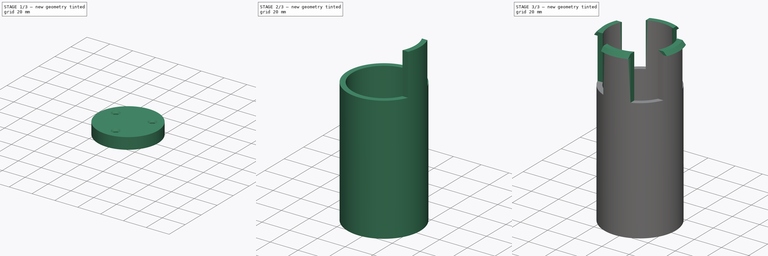
[diagram: build sequence overview — one tinted view per stage of 3, left to right]
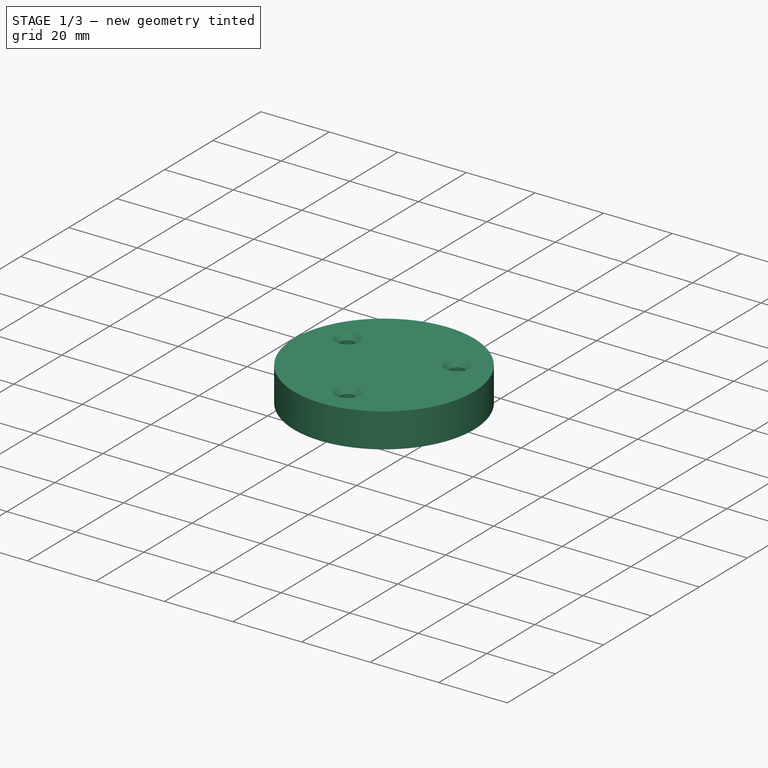
[diagram: stage 1 of 3 — iso view after this stage's code; geometry added in this stage tinted green]
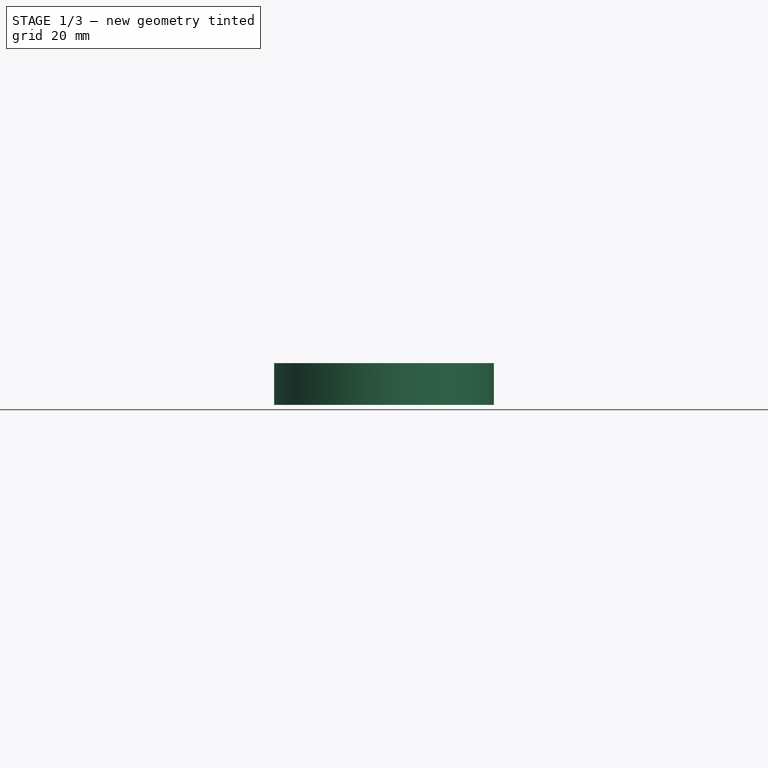
[diagram: stage 1 of 3 — front view after this stage's code; geometry added in this stage tinted green]
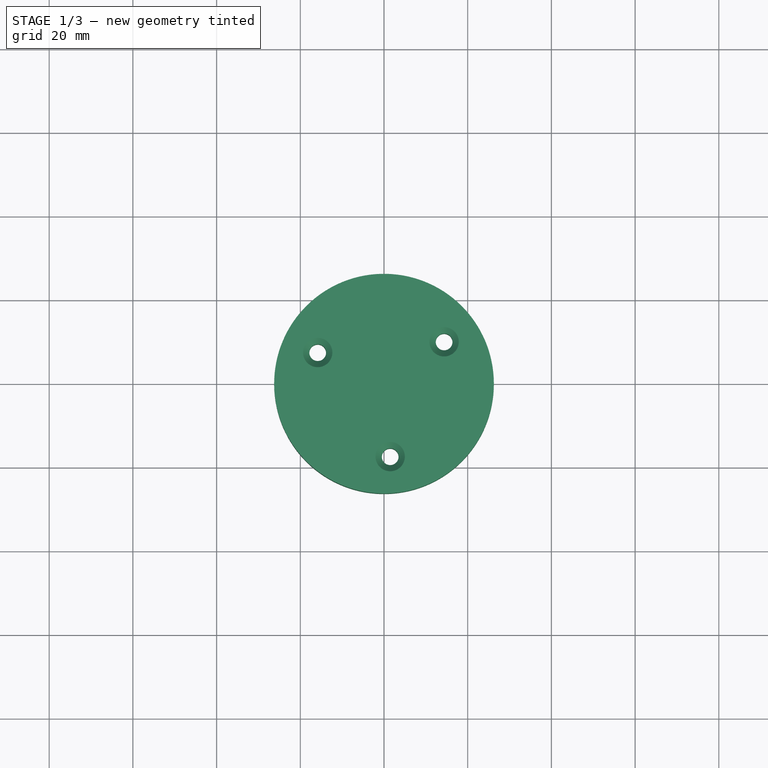
[diagram: stage 1 of 3 — top view after this stage's code; geometry added in this stage tinted green]
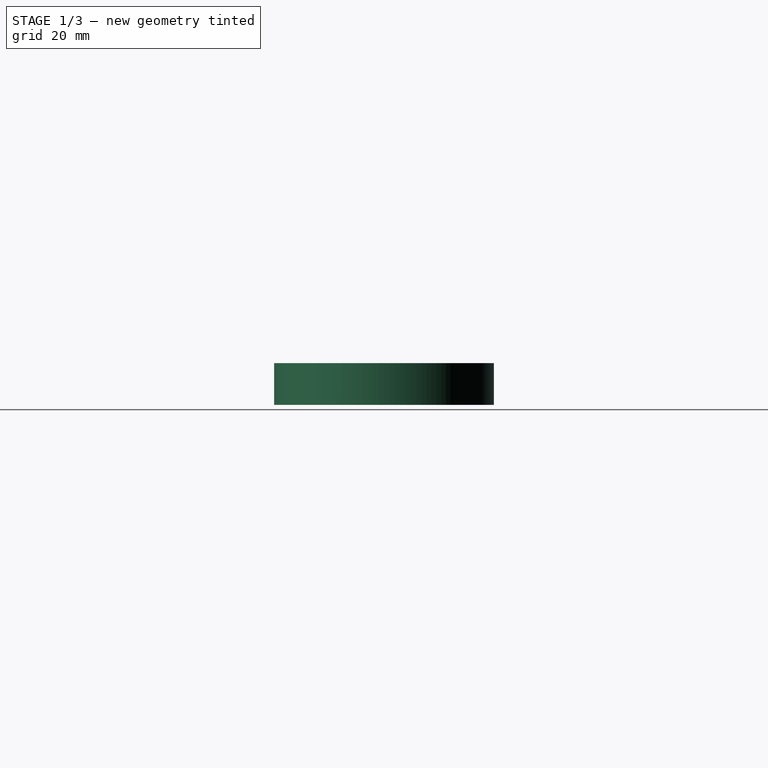
[diagram: stage 1 of 3 — right view after this stage's code; geometry added in this stage tinted green]
FCSTD DOCUMENT  (FreeCAD 2021.717R24301 +3627 (Git))
Label: wall spool holder
License: All rights reserved
LicenseURL: http://en.wikipedia.org/wiki/All_rights_reserved
objects: Sketcher::SketchObject×6, PartDesign::Pad×3, PartDesign::PolarPattern×2, Spreadsheet::Sheet×1, PartDesign::Hole×1, PartDesign::AdditivePipe×1, PartDesign::Pocket×1, PartDesign::Body×1
note: 31 computed .brp shape members not serialized (recipe doc carries the construction recipe); baked Part::Feature solids carry a one-line shape summary decoded from their .brp

FEATURE [Sketcher::SketchObject] Sketch
  FullyConstrained = true
  MapMode = 5
  Support = -> [XY_Plane]
  expr: Constraints[1] = <<dim>>.spool_inner_d
  sketch-geometry (1):
    g0: Circle CenterX=0 CenterY=0 CenterZ=0 NormalX=0 NormalY=0 NormalZ=1 AngleXU=0 Radius=26.25
  constraints (2):
    c: Coincident(g0,g-1)
    c: Diameter(g0) = 52.5
FEATURE [Spreadsheet::Sheet] Spreadsheet  label="dim"
  PythonMode = false
  cells = A1=spool_inner_d; B1(spool_inner_d)==52.5mm; A2=spool_thickness; B2(spool_thickness)==120mm; A3=wall_mount_thickness; B3(wall_mount_thickness)==10mm; A4=wall_hole_d; B4(wall_hole_d)==4mm; A5=wall_hole_countersink_d; B5(wall_hole_countersink_d)==7mm; A6=wall_hole_count; B6(wall_hole_count)=3; A7=cylinder_support_height; B7(cylinder_support_height)==80mm; A8=lock_width; B8(lock_width)==20mm; A9=lock_thickness; B9(lock_thickness)==3.58mm; A10=lock_lock; B10(lock_lock)==2.5mm; A11=lock_count; B11(lock_count)=4; A13=lock_height; B13(lock_height)==spool_thickness - wall_mount_thickness - cylinder_support_height
FEATURE [PartDesign::Pad] Pad
  ClaimChildren = false
  Direction = (1,1,1)
  Fit = 0
  FitJoin = 0
  InnerFit = 0
  InnerFitJoin = 0
  InnerTaperAngle = 0
  InnerTaperAngleRev = 0
  Length = 10
  Length2 = 100
  Linearize = true
  NewSolid = false
  Profile = -> Sketch
  Refine = true
  Suppress = false
  Type = 0
  _ProfileBasedVersion = 1
  expr: Length = <<dim>>.wall_mount_thickness
FEATURE [Sketcher::SketchObject] Sketch001
  AttachmentOffset = pos=(0,0,10) rot=(0,0,1;0rad)
  FullyConstrained = true
  MapMode = 5
  Placement = pos=(0,0,10) rot=(0,0,1;0rad)
  Support = -> [XY_Plane]
  expr: AttachmentOffset.Base.z = <<dim>>.wall_mount_thickness
  expr: Constraints[0] = <<dim>>.wall_hole_d
  expr: Constraints[1] = <<dim>>.spool_inner_d * 2 / 6
  expr: Constraints[2] = <<dim>>.lock_width / 2
  sketch-geometry (1):
    g0: Circle CenterX=14.3614 CenterY=10 CenterZ=0 NormalX=0 NormalY=0 NormalZ=1 AngleXU=0 Radius=2
  constraints (3):
    c: Diameter(g0) = 4
    c: Distance(g-1,g0) = 17.5
    c: DistanceY(g-1,g0) = 10
FEATURE [PartDesign::Hole] Hole
  BaseFeature = -> Pad
  ClaimChildren = false
  CustomThreadClearance = 0
  Depth = 25
  DepthType = 1
  Diameter = 4
  DrillForDepth = false
  DrillPoint = 1
  DrillPointAngle = 118
  Fit = 0
  FitJoin = 0
  HoleCutCountersinkAngle = 90
  HoleCutCustomValues = false
  HoleCutDepth = 0
  HoleCutDiameter = 7
  HoleCutType = 2
  InnerFit = 0
  InnerFitJoin = 0
  ModelThread = false
  NewSolid = false
  Profile = -> Sketch001
  Refine = true
  Suppress = false
  Tapered = false
  TaperedAngle = 45
  ThreadClass = 0
  ThreadDepth = 200.99
  ThreadDepthType = 0
  ThreadDirection = 0
  ThreadFit = 0
  ThreadSize = 0
  ThreadType = 0
  Threaded = false
  UseCustomThreadClearance = false
  _ProfileBasedVersion = 1
  expr: Diameter = <<dim>>.wall_hole_d
  expr: HoleCutDiameter = <<dim>>.wall_hole_countersink_d
FEATURE [PartDesign::PolarPattern] PolarPattern
  Angle = 360
  Axis = -> Sketch001 [N_Axis]
  BaseFeature = -> Hole
  CopyShape = false
  NewSolid = false
  Occurrences = 3
  OriginalSubs = -> [Hole]
  Originals = -> [Hole]
  ParallelTransform = true
  Refine = true
  SubTransform = true
  Suppress = false
  expr: Occurrences = <<dim>>.wall_hole_count
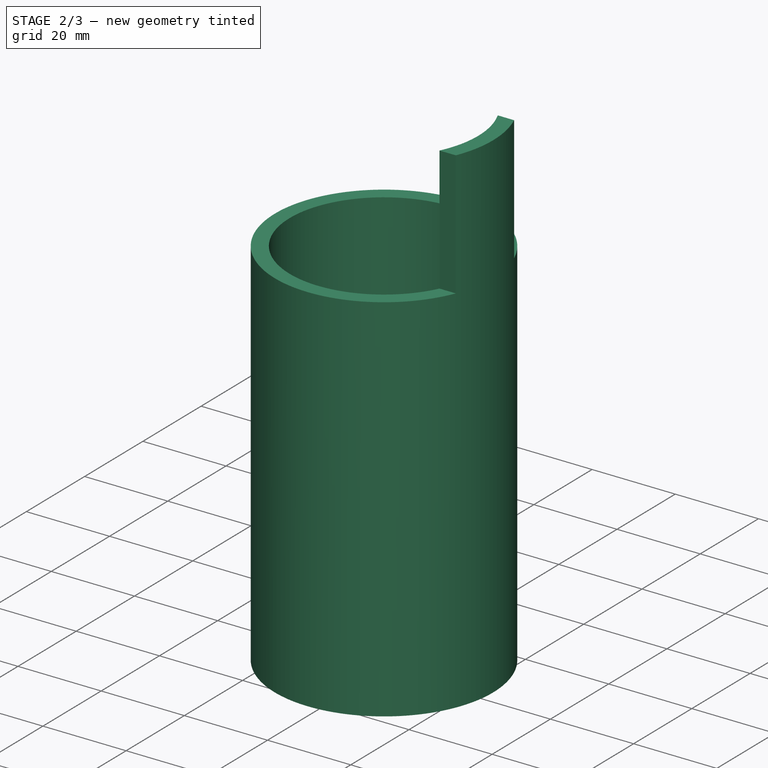
[diagram: stage 2 of 3 — iso view after this stage's code; geometry added in this stage tinted green]
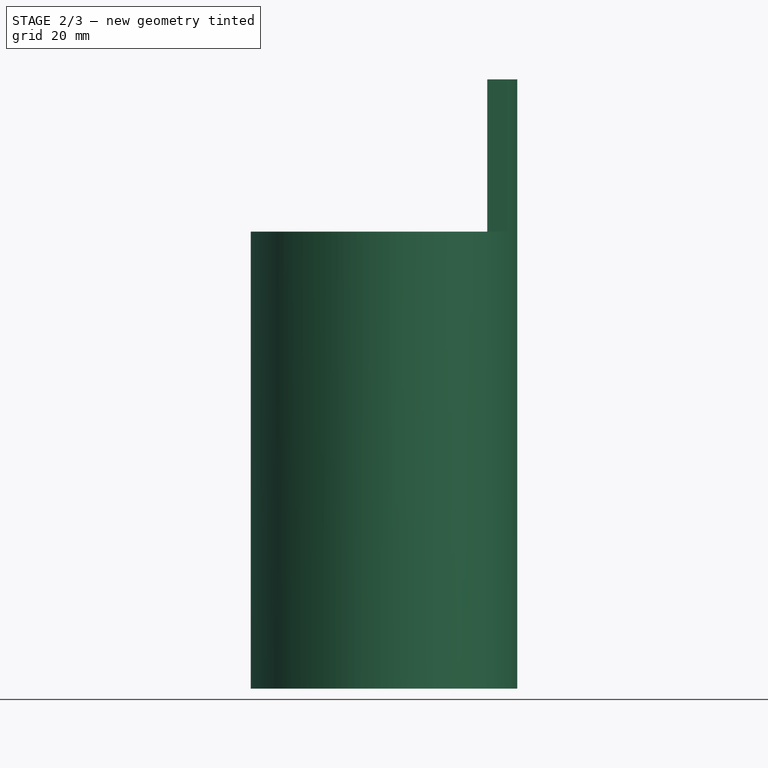
[diagram: stage 2 of 3 — front view after this stage's code; geometry added in this stage tinted green]
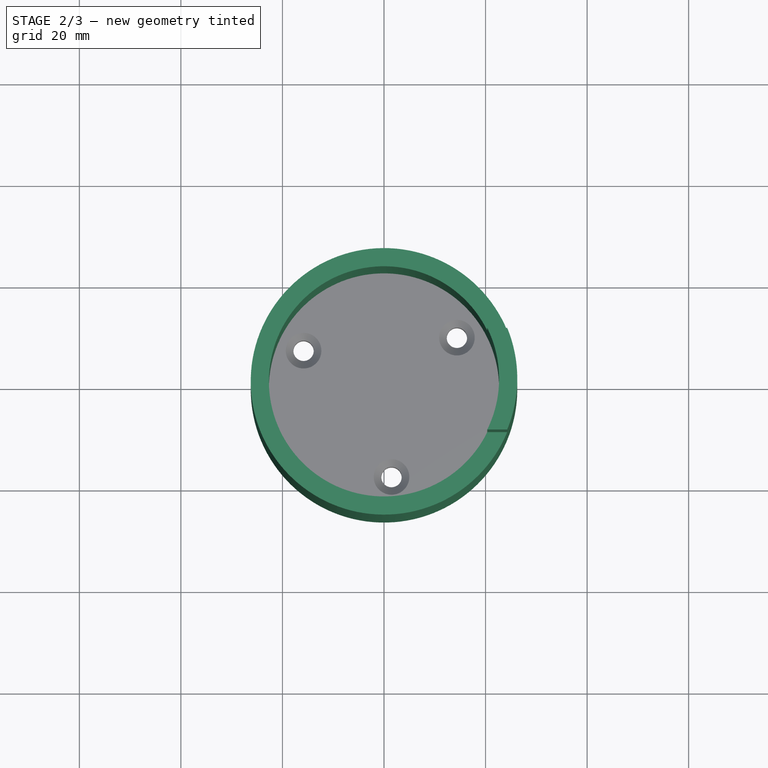
[diagram: stage 2 of 3 — top view after this stage's code; geometry added in this stage tinted green]
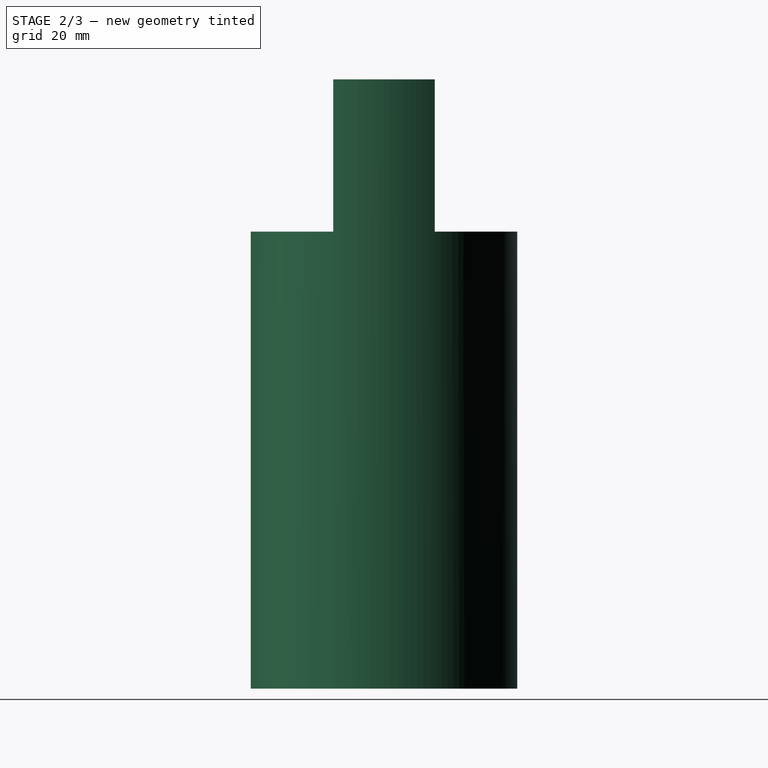
[diagram: stage 2 of 3 — right view after this stage's code; geometry added in this stage tinted green]
FEATURE [Sketcher::SketchObject] Sketch002
  AttachmentOffset = pos=(0,0,90) rot=(0,0,1;0rad)
  FullyConstrained = true
  MapMode = 5
  Placement = pos=(0,0,90) rot=(0,0,1;0rad)
  Support = -> [XY_Plane]
  expr: AttachmentOffset.Base.z = <<dim>>.wall_mount_thickness + <<dim>>.cylinder_support_height
  expr: Constraints[11] = <<dim>>.lock_thickness
  expr: Constraints[6] = <<dim>>.spool_inner_d
  expr: Constraints[7] = <<dim>>.lock_width
  sketch-geometry (6):
    g0: ArcOfCircle CenterX=0 CenterY=0 CenterZ=0 NormalX=0 NormalY=0 NormalZ=1 AngleXU=0 Radius=26.25 StartAngle=5.89236 EndAngle=6.67401
    g1: LineSegment StartX=20.3452 StartY=10 StartZ=0 EndX=24.2706 EndY=10 EndZ=0
    g2: LineSegment StartX=20.3452 StartY=-10 StartZ=0 EndX=24.2706 EndY=-10 EndZ=0
    g3: GeomPoint [constr] X=22.67 Y=0 Z=0
    g4: GeomPoint [constr] X=26.25 Y=0 Z=0
    g5: ArcOfCircle CenterX=0 CenterY=0 CenterZ=0 NormalX=0 NormalY=0 NormalZ=1 AngleXU=0 Radius=22.67 StartAngle=5.82635 EndAngle=6.74002
  constraints (16):
    c: Coincident(g0,g-1)
    c: Coincident(g1,g0)
    c: Coincident(g2,g0)
    c: Horizontal(g1)
    c: Horizontal(g2)
    c: Symmetric(g0,g0,g-1)
    c: Diameter(g0) = 52.5
    c: DistanceY(g2,g1) = 20
    c: PointOnObject(g3,g-1)
    c: PointOnObject(g4,g0)
    c: PointOnObject(g4,g-1)
    c: DistanceX(g3,g4) = 3.58
    c: Coincident(g5,g0)
    c: PointOnObject(g3,g5)
    c: Coincident(g1,g5)
    c: Coincident(g2,g5)
FEATURE [Sketcher::SketchObject] Sketch005
  AttachmentOffset = pos=(0,0,10) rot=(0,0,1;0rad)
  FullyConstrained = true
  MapMode = 5
  Placement = pos=(0,0,10) rot=(0,0,1;0rad)
  Support = -> [XY_Plane]
  expr: AttachmentOffset.Base.z = <<dim>>.wall_mount_thickness
  expr: Constraints[2] = <<dim>>.spool_inner_d
  expr: Constraints[3] = <<dim>>.spool_inner_d - <<dim>>.lock_thickness * 2
  sketch-geometry (2):
    g0: Circle CenterX=0 CenterY=0 CenterZ=0 NormalX=0 NormalY=0 NormalZ=1 AngleXU=0 Radius=26.25
    g1: Circle CenterX=0 CenterY=0 CenterZ=0 NormalX=0 NormalY=0 NormalZ=1 AngleXU=0 Radius=22.67
  constraints (4):
    c: Coincident(g0,g-1)
    c: Coincident(g1,g0)
    c: Diameter(g0) = 52.5
    c: Diameter(g1) = 45.34
FEATURE [PartDesign::Pad] Pad001
  BaseFeature = -> PolarPattern
  ClaimChildren = false
  Direction = (1,1,1)
  Fit = 0
  FitJoin = 0
  InnerFit = 0
  InnerFitJoin = 0
  InnerTaperAngle = 0
  InnerTaperAngleRev = 0
  Length = 80
  Length2 = 100
  Linearize = true
  NewSolid = false
  Profile = -> Sketch005
  Refine = true
  Suppress = false
  Type = 0
  _ProfileBasedVersion = 1
  expr: Length = <<dim>>.cylinder_support_height
FEATURE [PartDesign::Pad] Pad002
  BaseFeature = -> Pad001
  ClaimChildren = false
  Direction = (1,1,1)
  Fit = 0
  FitJoin = 0
  InnerFit = 0
  InnerFitJoin = 0
  InnerTaperAngle = 0
  InnerTaperAngleRev = 0
  Length = 30
  Length2 = 100
  Linearize = true
  NewSolid = false
  Profile = -> Sketch002
  Refine = true
  Suppress = false
  Type = 0
  _ProfileBasedVersion = 1
  expr: Length = <<dim>>.lock_height
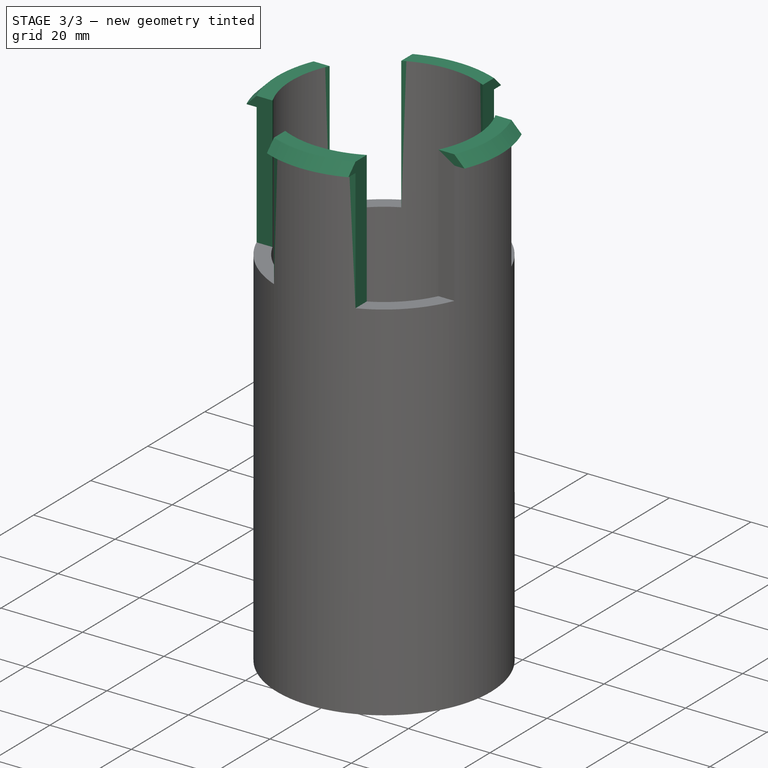
[diagram: stage 3 of 3 — iso view after this stage's code; geometry added in this stage tinted green]
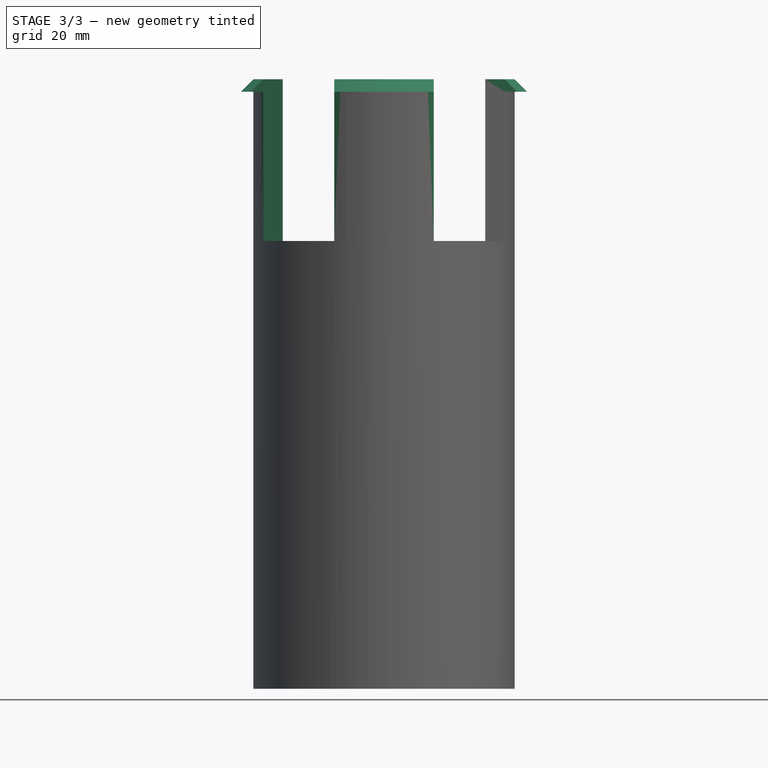
[diagram: stage 3 of 3 — front view after this stage's code; geometry added in this stage tinted green]
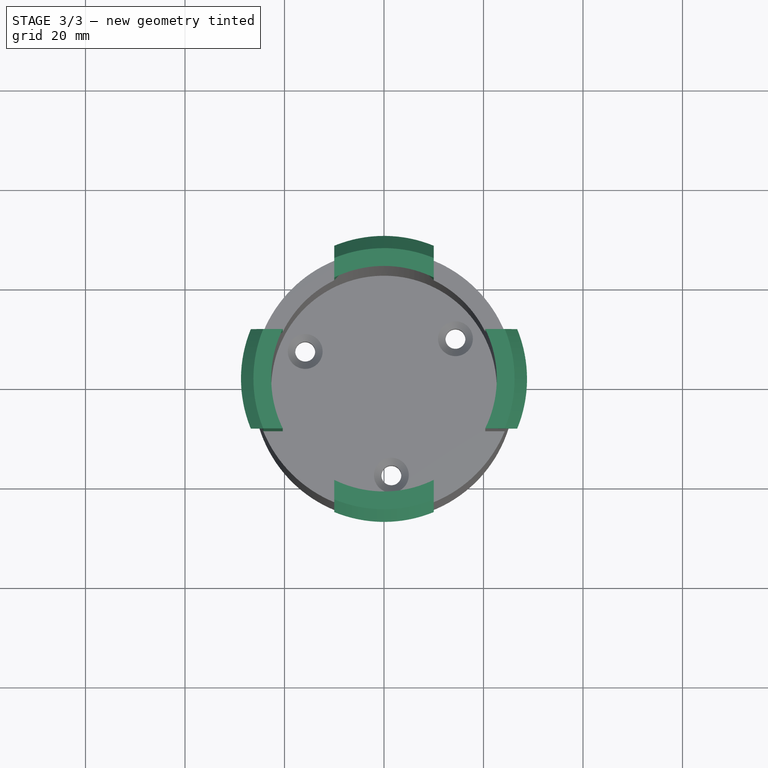
[diagram: stage 3 of 3 — top view after this stage's code; geometry added in this stage tinted green]
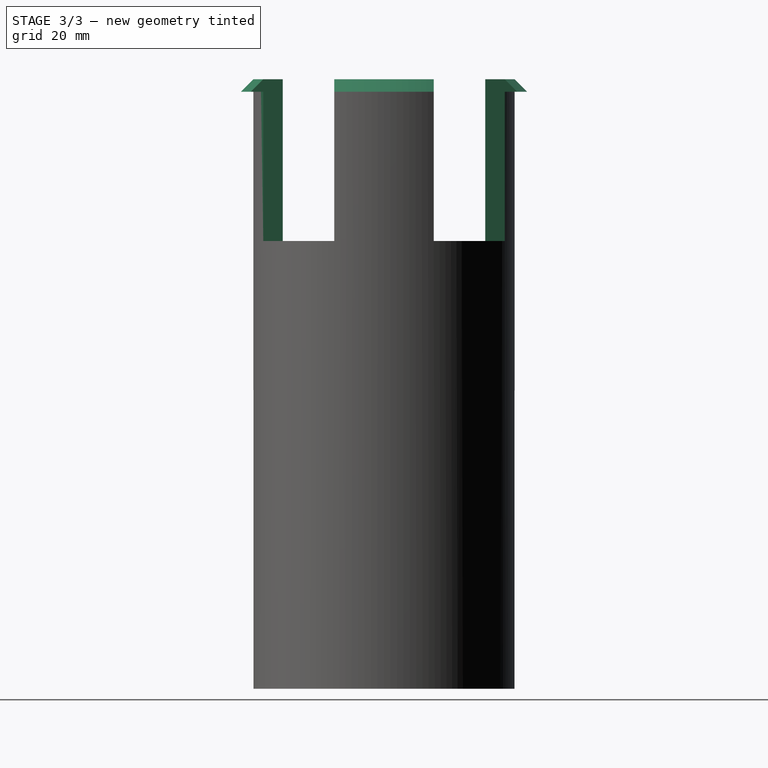
[diagram: stage 3 of 3 — right view after this stage's code; geometry added in this stage tinted green]
FEATURE [Sketcher::SketchObject] Sketch003
  ExternalGeometry = -> [Pad002]
  FullyConstrained = true
  MapMode = 5
  Placement = pos=(0,0,0) rot=(1,0,0;1.5708rad)
  Support = -> [XZ_Plane]
  expr: Constraints[9] = <<dim>>.lock_lock
  sketch-geometry (5):
    g0: LineSegment StartX=20.3452 StartY=122.5 StartZ=0 EndX=20.3452 EndY=120 EndZ=0
    g1: LineSegment StartX=20.3452 StartY=122.5 StartZ=0 EndX=26.25 EndY=122.5 EndZ=0
    g2: LineSegment StartX=26.25 StartY=122.5 StartZ=0 EndX=28.75 EndY=120 EndZ=0
    g3: LineSegment StartX=20.3452 StartY=120 StartZ=0 EndX=26.25 EndY=120 EndZ=0
    g4: LineSegment StartX=26.25 StartY=120 StartZ=0 EndX=28.75 EndY=120 EndZ=0
  constraints (13):
    c: Vertical(g0)
    c: Coincident(g2,g1)
    c: Coincident(g4,g3)
    c: Coincident(g4,g2)
    c: Horizontal(g4)
    c: Equal(g4,g0)
    c: Vertical(g1,g3)
    c: Horizontal(g1)
    c: Coincident(g3,g-4)
    c: DistanceX(g4,g4) = 2.5
    c: Coincident(g0,g3)
    c: Coincident(g0,g-3)
    c: Coincident(g0,g1)
FEATURE [PartDesign::AdditivePipe] AdditivePipe
  AuxilleryCurvelinear = true
  AuxillerySpineTangent = false
  BaseFeature = -> Pad002
  Binormal = (0,0,0)
  ClaimChildren = false
  Fit = 0
  FitJoin = 0
  InnerFit = 0
  InnerFitJoin = 0
  Mode = 1
  NewSolid = false
  Profile = -> Sketch003
  Refine = true
  Spine = -> Pad002 [Edge11,Edge12]
  SpineTangent = false
  Suppress = false
  Transformation = 0
  Transition = 1
  _ProfileBasedVersion = 1
FEATURE [Sketcher::SketchObject] Sketch006
  AttachmentOffset = pos=(0,0,120) rot=(0,0,1;0rad)
  ExternalGeometry = -> [AdditivePipe]
  FullyConstrained = true
  MapMode = 5
  Placement = pos=(0,0,120) rot=(0,0,1;0rad)
  Support = -> [XY_Plane]
  expr: AttachmentOffset.Base.z = <<dim>>.spool_thickness
  sketch-geometry (4):
    g0: ArcOfCircle CenterX=0 CenterY=0 CenterZ=0 NormalX=0 NormalY=0 NormalZ=1 AngleXU=0 Radius=22.67 StartAngle=5.82635 EndAngle=6.74002
    g1: LineSegment StartX=20.3452 StartY=-10 StartZ=0 EndX=0 EndY=-10 EndZ=0
    g2: LineSegment StartX=20.3452 StartY=10 StartZ=0 EndX=0 EndY=10 EndZ=0
    g3: LineSegment StartX=0 StartY=10 StartZ=0 EndX=0 EndY=-10 EndZ=0
  constraints (11):
    c: Coincident(g0,g-3)
    c: Coincident(g0,g-3)
    c: Coincident(g0,g-3)
    c: Coincident(g1,g0)
    c: PointOnObject(g1,g-2)
    c: Horizontal(g1)
    c: Coincident(g2,g0)
    c: PointOnObject(g2,g-2)
    c: Horizontal(g2)
    c: Coincident(g3,g2)
    c: Coincident(g3,g1)
FEATURE [PartDesign::Pocket] Pocket
  BaseFeature = -> AdditivePipe
  ClaimChildren = false
  Fit = 0
  FitJoin = 0
  InnerFit = 0
  InnerFitJoin = 0
  InnerTaperAngle = 0
  InnerTaperAngleRev = 0
  Length = 5
  Length2 = 100
  Linearize = true
  NewSolid = false
  Profile = -> Sketch006
  Refine = true
  Reversed = true
  Suppress = false
  Type = 1
  _ProfileBasedVersion = 1
FEATURE [PartDesign::PolarPattern] PolarPattern001
  Angle = 360
  Axis = -> Sketch002 [N_Axis]
  BaseFeature = -> Pocket
  CopyShape = false
  NewSolid = false
  Occurrences = 4
  OriginalSubs = -> [Pad002,AdditivePipe,Pocket]
  Originals = -> [Pad002,AdditivePipe,Pocket]
  ParallelTransform = true
  Refine = true
  SubTransform = true
  Suppress = false
  expr: Occurrences = <<dim>>.lock_count
FEATURE [PartDesign::Body] Body
  AutoGroupSolids = false
  ExportMode = 0
  Group = -> [Sketch,Pad,Sketch001,Hole,PolarPattern,Sketch002,Sketch003,Sketch005,Pad001,Pad002,AdditivePipe,Sketch006,Pocket,PolarPattern001]
  Origin = -> Origin
  Tip = -> PolarPattern001
  _ExportChildren = -> [Pad,Hole,PolarPattern,Pad001,Pad002,AdditivePipe,Pocket,PolarPattern001]
  _GroupVersion = 1
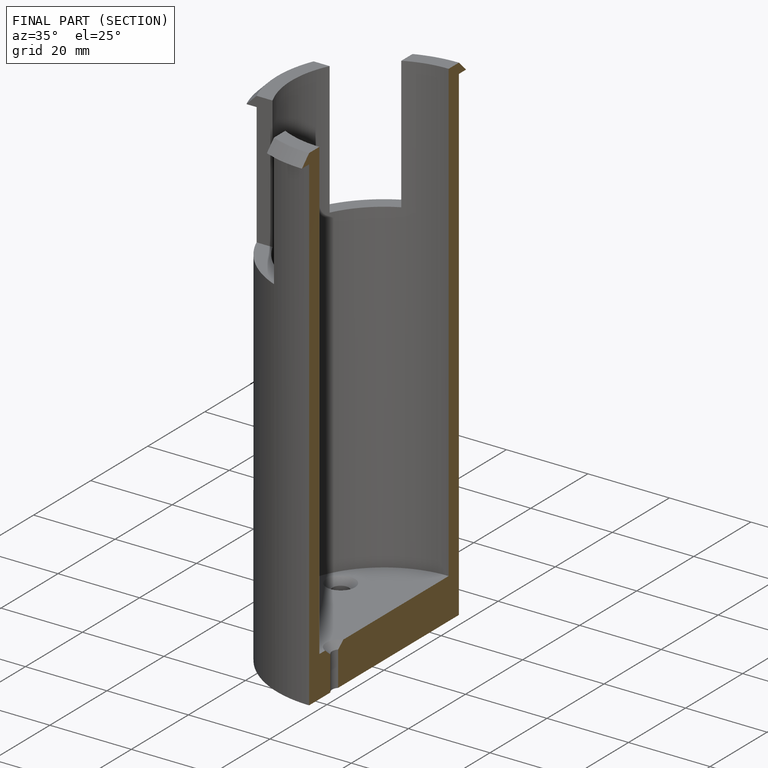
[diagram: finished part — half-section view (interior)]
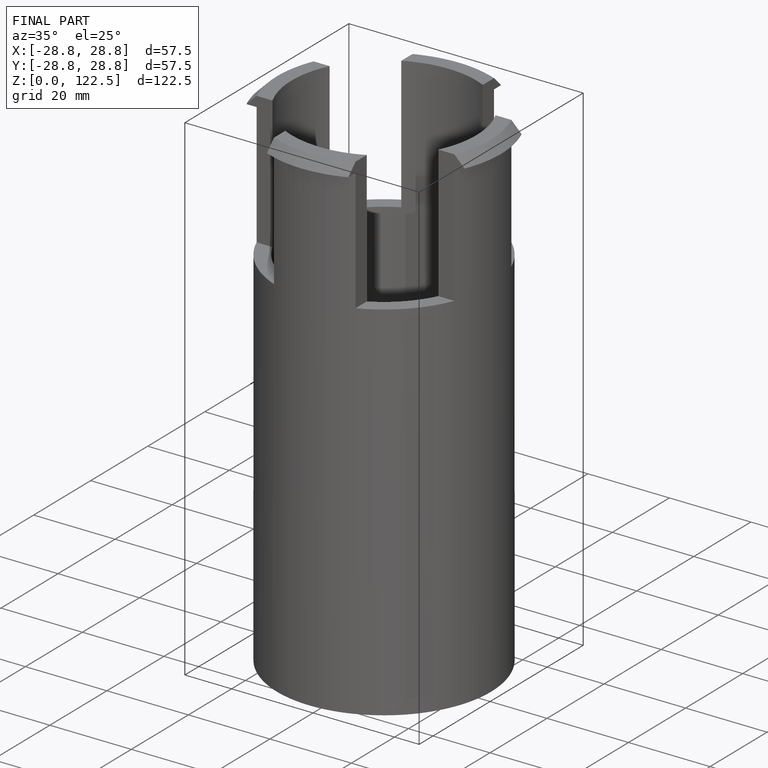
[diagram: finished part — iso view with bounding-box wireframe]
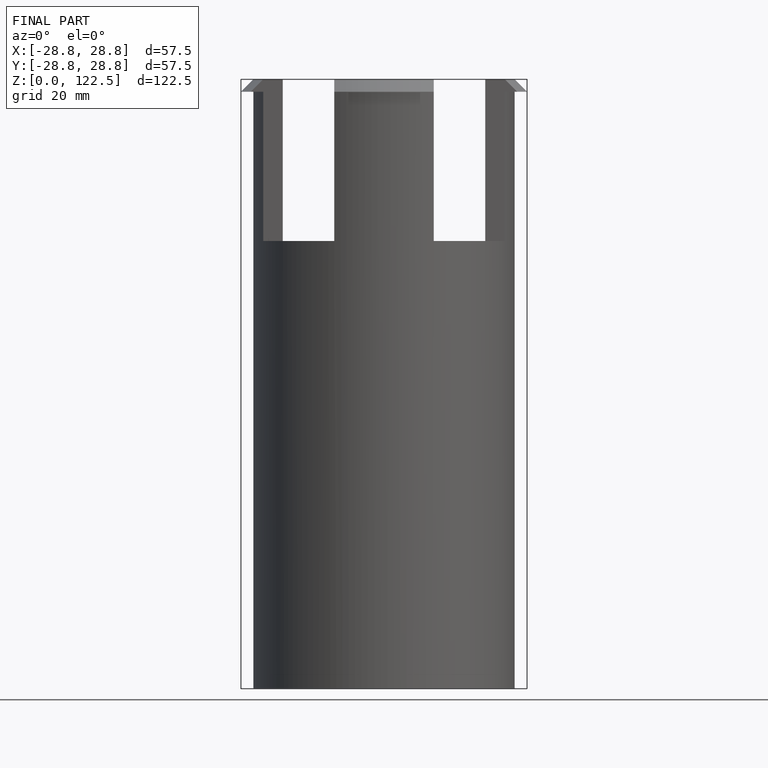
[diagram: finished part — front view with bounding-box wireframe]
